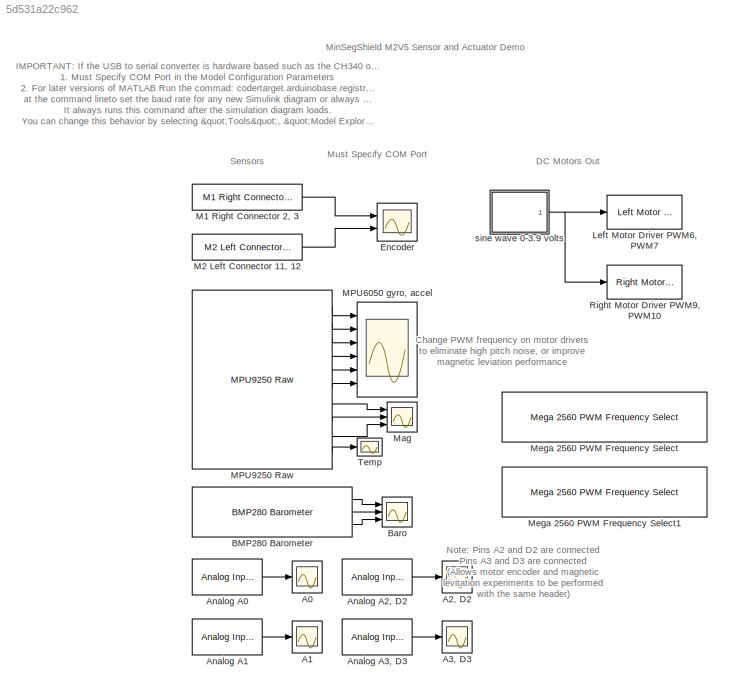
MODEL slx_5d531a22c962
KIND model
CONFIG AbsTol = auto
CONFIG FixedStep = auto
CONFIG MaxStep = auto
CONFIG MinStep = auto
CONFIG PostLoadFcn = try, \ncodertarget.arduinobase.registry.setBaudRate(gcs,115200)\ndisp('baud rate set to 115200 for external mode hardware serial')\nbaudrate='set_to_115200'\ncatch\ndisp('baud rate setting not needed in this version')\nend
CONFIG RelTol = 1e-3
CONFIG SampleTimeConstraint = Unconstrained
CONFIG Solver = ode45
CONFIG SolverMode = Auto
CONFIG SolverName = ode45
CONFIG StartTime = 0.0
CONFIG StopTime = 10.0
BLOCK [Scope] A0
  Floating = off
  NumInputPorts = 1
  Ports = [1]
  SaveName = ScopeData2
  YMax = 1100
  YMin = 0
BLOCK [Scope] A1
  Floating = off
  NumInputPorts = 1
  Ports = [1]
  SaveName = ScopeData3
BLOCK [Scope] A2, D2
  Floating = off
  NumInputPorts = 1
  Ports = [1]
  SaveName = ScopeData5
BLOCK [Scope] A3, D3
  Floating = off
  NumInputPorts = 1
  Ports = [1]
  SaveName = ScopeData4
BLOCK [Reference] Analog A0  REF=arduinolib/Analog Input
  Ports = [0, 1]
  SourceBlock = arduinolib/Analog Input
  SourceType = Arduino Analog Input
  blockPlatform = arduino
  pinNumber = 0
  sampleTime = -1
BLOCK [Reference] Analog A1  REF=arduinolib/Analog Input
  Ports = [0, 1]
  SourceBlock = arduinolib/Analog Input
  SourceType = Arduino Analog Input
  blockPlatform = arduino
  pinNumber = 1
  sampleTime = -1
BLOCK [Reference] Analog A2, D2  REF=arduinolib/Analog Input
  Ports = [0, 1]
  SourceBlock = arduinolib/Analog Input
  SourceType = Arduino Analog Input
  blockPlatform = arduino
  pinNumber = 2
  sampleTime = -1
BLOCK [Reference] Analog A3, D3  REF=arduinolib/Analog Input
  Ports = [0, 1]
  SourceBlock = arduinolib/Analog Input
  SourceType = Arduino Analog Input
  blockPlatform = arduino
  pinNumber = 3
  sampleTime = -1
BLOCK [Reference] BMP280 Barometer  REF=RASPlib/BMP280 Barometer
  Ports = [0, 3]
  SimulateUsing = Code generation
  SourceBlock = RASPlib/BMP280 Barometer
  SourceType = soBMP280
BLOCK [Scope] Baro
  DataFormat = StructureWithTime
  Floating = off
  NumInputPorts = 3
  Ports = [3]
  SampleTime = 0
  SaveName = ScopeData6
  TimeRange = 10
  YMax = 35000~35000~35000
  YMin = -35000~-35000~-35000
BLOCK [Scope] Encoder
  DataFormat = StructureWithTime
  Floating = off
  NumInputPorts = 2
  Ports = [2]
  SampleTime = 0
  TimeRange = 10
  YMax = 22500~20000
  YMin = -7500~-7500
BLOCK [Reference] Left Motor Driver PWM6, PWM7  REF=MinSegLibrary_M2V5/Left Motor Driver
PWM6, PWM7
  PWMoffset = 0
  Ports = [1]
  SourceBlock = MinSegLibrary_M2V5/Left Motor Driver\nPWM6, PWM7
  Vsupply = 3.9
BLOCK [Reference] M1 Right Connector 2, 3  REF=MinSegLibrary_M2V5/M1 Right Connector 2, 3
  Encoder = 0
  PinA = 2
  PinB = 3
  Ports = [0, 1]
  SourceBlock = MinSegLibrary_M2V5/M1 Right Connector 2, 3
  SourceType = Encoder_arduino
BLOCK [Reference] M2 Left Connector 11, 12  REF=MinSegLibrary_M2V5/M2 Left Connector 11, 12
  Encoder = 4
  PinA = 11
  PinB = 12
  Ports = [0, 1]
  SourceBlock = MinSegLibrary_M2V5/M2 Left Connector 11, 12
  SourceType = Encoder_arduino
BLOCK [Scope] MPU6050 gyro, accel
  DataFormat = StructureWithTime
  Floating = off
  NumInputPorts = 6
  Ports = [6]
  SampleTime = 0
  SaveName = ScopeData1
  TimeRange = 10
  YMax = 15000~7500~25000~10000~40000~15000
  YMin = -15000~-15000~-20000~-10000~-30000~-20000
BLOCK [Reference] MPU9250 Raw  REF=RASPlib/MPU9250 Raw
  Ports = [0, 10]
  SimulateUsing = Code generation
  SourceBlock = RASPlib/MPU9250 Raw
  SourceType = soMPU9250RAW
BLOCK [Scope] Mag
  DataFormat = StructureWithTime
  Floating = off
  NumInputPorts = 3
  Ports = [3]
  SampleTime = 0
  SaveName = ScopeData7
  TimeRange = 10
  YMax = 35000~35000~35000
  YMin = -35000~-35000~-35000
BLOCK [Reference] Mega 2560 PWM Frequency Select  REF=RASPlib/Mega 2560 PWM Frequency Select
  Commented = on
  Frequency = 32KHz
  Ports = []
  SourceBlock = RASPlib/Mega 2560 PWM Frequency Select
  Timer = 4 - pins 6, 7, 8
BLOCK [Reference] Mega 2560 PWM Frequency Select1  REF=RASPlib/Mega 2560 PWM Frequency Select
  Commented = on
  Frequency = 32KHz
  Ports = []
  SourceBlock = RASPlib/Mega 2560 PWM Frequency Select
  Timer = 2 - pins 9, 10
BLOCK [Reference] Right Motor Driver PWM9, PWM10   REF=MinSegLibrary_M2V5/Right Motor Driver
PWM9, PWM10

  PWMoffset = 0
  Ports = [1]
  SourceBlock = MinSegLibrary_M2V5/Right Motor Driver\nPWM9, PWM10
  Vsupply = 3.9
BLOCK [Scope] Temp
  DataFormat = StructureWithTime
  Floating = off
  NumInputPorts = 1
  Ports = [1]
  SampleTime = 0
  SaveName = ScopeData9
  TimeRange = 30
  YMax = 1650
  YMin = 1500
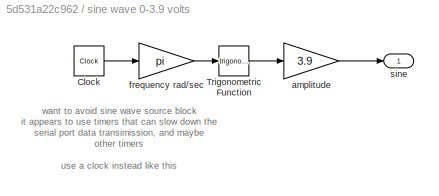
BLOCK [SubSystem] sine wave 0-3.9 volts
  Ports = [0, 1]
  RequestExecContextInheritance = off
BLOCK [Clock] sine wave 0-3.9 volts/Clock
BLOCK [Trigonometry] sine wave 0-3.9 volts/Trigonometric Function
  Ports = [1, 1]
BLOCK [Gain] sine wave 0-3.9 volts/amplitude
  Gain = 3.9
  OutDataTypeStr = Inherit: Inherit via internal rule
  ParamDataTypeStr = Inherit: Inherit via internal rule
  SaturateOnIntegerOverflow = off
BLOCK [Gain] sine wave 0-3.9 volts/frequency rad//sec
  Gain = pi
  OutDataTypeStr = Inherit: Inherit via internal rule
  ParamDataTypeStr = Inherit: Inherit via internal rule
  SaturateOnIntegerOverflow = off
BLOCK [Outport] sine wave 0-3.9 volts/sine
  IconDisplay = Port number
ANNOTATION (root): IMPORTANT : If the USB to serial converter is hardware based such as the CH340 or the PL2303 you must: 1. Must Specify COM Port in the Model Configuration Parameters 2. For later versions of MATLAB Run the commad: codertarget.arduinobase.registry.setBaudRate(gcs,115200) at the command lineto set the baud rate for any new Simulink diagram or always use this file to start new projects. It always run...<+146ch>
ANNOTATION (root): Change PWM frequency on motor drivers to eliminate high pitch noise, or improve magnetic leviation performance
ANNOTATION (root): DC Motors Out
ANNOTATION (root): MinSegShield M2V5 Sensor and Actuator Demo
ANNOTATION (root): Must Specify COM Port
ANNOTATION (root): Note: Pins A2 and D2 are connected Pins A3 and D3 are connected (Allows motor encoder and magnetic levitation experiments to be performed with the same header)
ANNOTATION (root): Sensors
ANNOTATION sine wave 0-3.9 volts: want to avoid sine wave source block it appears to use timers that can slow down the serial port data transimission, and maybe other timers use a clock instead like this
LINE Analog A0:1 -> A0:1
LINE Analog A1:1 -> A1:1
LINE Analog A2, D2:1 -> A2, D2:1
LINE Analog A3, D3:1 -> A3, D3:1
LINE BMP280 Barometer:1 -> Baro:1
LINE BMP280 Barometer:2 -> Baro:2
LINE BMP280 Barometer:3 -> Baro:3
LINE M1 Right Connector 2, 3:1 -> Encoder:1
LINE M2 Left Connector 11, 12:1 -> Encoder:2
LINE MPU9250 Raw:1 -> MPU6050 gyro, accel:1
LINE MPU9250 Raw:10 -> Temp:1
LINE MPU9250 Raw:2 -> MPU6050 gyro, accel:2
LINE MPU9250 Raw:3 -> MPU6050 gyro, accel:3
LINE MPU9250 Raw:4 -> MPU6050 gyro, accel:4
LINE MPU9250 Raw:5 -> MPU6050 gyro, accel:5
LINE MPU9250 Raw:6 -> MPU6050 gyro, accel:6
LINE MPU9250 Raw:7 -> Mag:1
LINE MPU9250 Raw:8 -> Mag:2
LINE MPU9250 Raw:9 -> Mag:3
LINE sine wave 0-3.9 volts/Clock:1 -> sine wave 0-3.9 volts/frequency rad//sec:1
LINE sine wave 0-3.9 volts/Trigonometric Function:1 -> sine wave 0-3.9 volts/amplitude:1
LINE sine wave 0-3.9 volts/amplitude:1 -> sine wave 0-3.9 volts/sine:1
LINE sine wave 0-3.9 volts/frequency rad//sec:1 -> sine wave 0-3.9 volts/Trigonometric Function:1
NET sine wave 0-3.9 volts:1 -> Left Motor Driver PWM6, PWM7:1, Right Motor Driver PWM9, PWM10 :1
note: NET lines group one-source signal fan-out (src -> all destinations, sorted); 1:1 wires keep LINE
